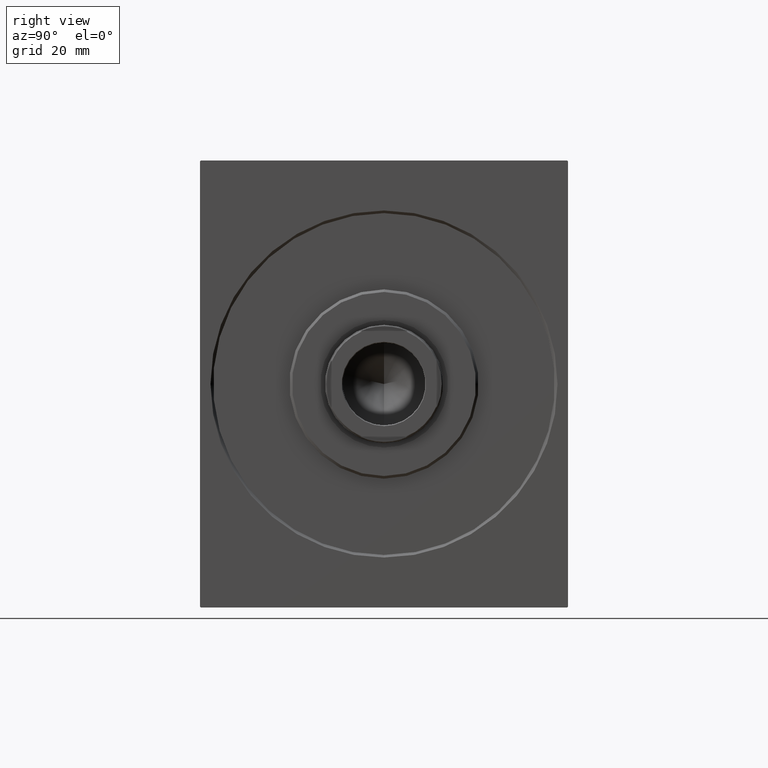
[diagram: clean part render]
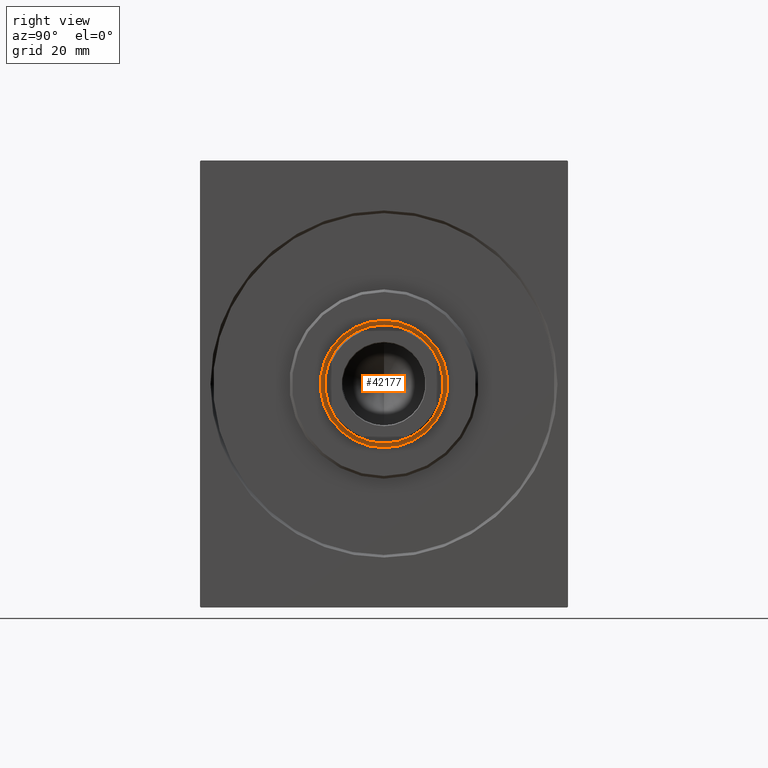
[diagram: same view with one face highlighted and labeled with its STEP entity id]
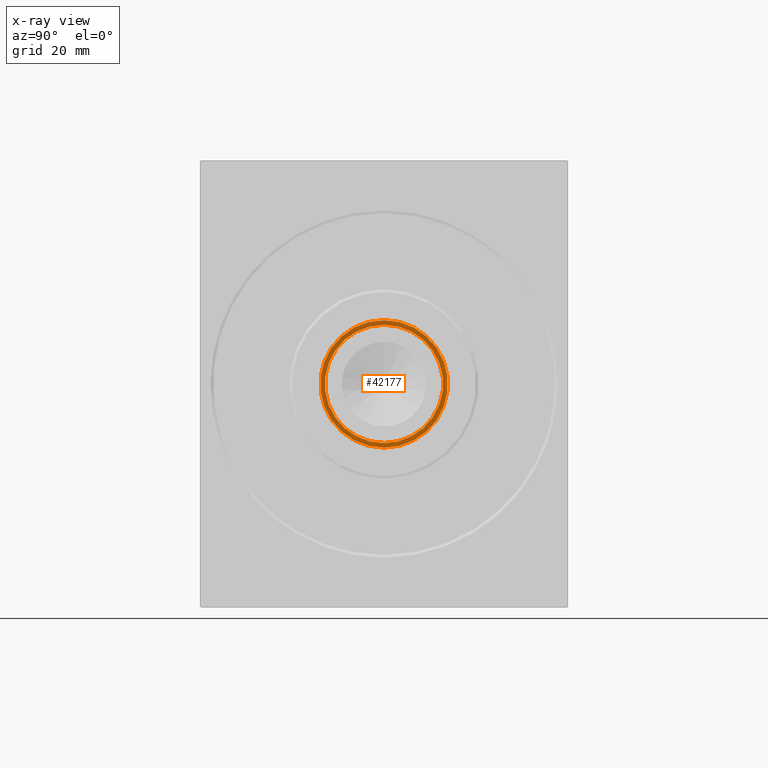
[diagram: x-ray of the same camera — body ghosted, the highlighted face saturated]
A machine part, right view. The second image highlights one B-rep face of the part: STEP entity #42177.
The next image is the same camera in x-ray: the body ghosted, the highlighted face saturated — about 0% of this face is hidden behind the body in this view.
In plain terms, the highlighted planar face has unit normal (1, 0, 0).
Its self-contained STEP definition (entity closure, byte-faithful):
#4529 = DIRECTION ( 'NONE',  ( 1.000000000000000000, 0.000000000000000000, 0.000000000000000000 ) ) ;
#5043 = AXIS2_PLACEMENT_3D ( 'NONE', #10374, #4529, #17714 ) ;
#5325 = EDGE_CURVE ( 'NONE', #9259, #36409, #6471, .T. ) ;
#5971 = DIRECTION ( 'NONE',  ( 0.000000000000000000, 0.000000000000000000, -1.000000000000000000 ) ) ;
#6471 = CIRCLE ( 'NONE', #30668, 22.50000000000000355 ) ;
#7305 = DIRECTION ( 'NONE',  ( 1.000000000000000000, 0.000000000000000000, 0.000000000000000000 ) ) ;
#9259 = VERTEX_POINT ( 'NONE', #23215 ) ;
#10374 = CARTESIAN_POINT ( 'NONE',  ( 1.500000000000000000, 0.000000000000000000, 0.000000000000000000 ) ) ;
#10733 = CARTESIAN_POINT ( 'NONE',  ( 1.500000000000000000, 0.000000000000000000, 0.000000000000000000 ) ) ;
#11348 = DIRECTION ( 'NONE',  ( 1.000000000000000000, 0.000000000000000000, 0.000000000000000000 ) ) ;
#12462 = DIRECTION ( 'NONE',  ( 1.000000000000000000, 0.000000000000000000, 0.000000000000000000 ) ) ;
#13959 = EDGE_CURVE ( 'NONE', #34735, #16793, #26860, .T. ) ;
#16471 = AXIS2_PLACEMENT_3D ( 'NONE', #10733, #30218, #30862 ) ;
#16793 = VERTEX_POINT ( 'NONE', #40892 ) ;
#17714 = DIRECTION ( 'NONE',  ( 0.000000000000000000, 0.000000000000000000, -1.000000000000000000 ) ) ;
#18032 = CIRCLE ( 'NONE', #34641, 24.25000000000000000 ) ;
#22131 = EDGE_CURVE ( 'NONE', #16793, #34735, #18032, .T. ) ;
#22222 = CIRCLE ( 'NONE', #42282, 22.50000000000000355 ) ;
#23215 = CARTESIAN_POINT ( 'NONE',  ( 1.500000000000001332, 2.755455298081544383E-15, 22.50000000000000355 ) ) ;
#26860 = CIRCLE ( 'NONE', #16471, 24.25000000000000000 ) ;
#26916 = EDGE_LOOP ( 'NONE', ( #31240, #33623 ) ) ;
#27371 = EDGE_CURVE ( 'NONE', #36409, #9259, #22222, .T. ) ;
#27692 = CARTESIAN_POINT ( 'NONE',  ( 1.500000000000000000, 0.000000000000000000, 24.25000000000000000 ) ) ;
#30218 = DIRECTION ( 'NONE',  ( 1.000000000000000000, 0.000000000000000000, 0.000000000000000000 ) ) ;
#30299 = FACE_BOUND ( 'NONE', #26916, .T. ) ;
#30668 = AXIS2_PLACEMENT_3D ( 'NONE', #33649, #11348, #41216 ) ;
#30862 = DIRECTION ( 'NONE',  ( 0.000000000000000000, 0.000000000000000000, -1.000000000000000000 ) ) ;
#31240 = ORIENTED_EDGE ( 'NONE', *, *, #27371, .F. ) ;
#33145 = EDGE_LOOP ( 'NONE', ( #42251, #33361 ) ) ;
#33361 = ORIENTED_EDGE ( 'NONE', *, *, #22131, .T. ) ;
#33623 = ORIENTED_EDGE ( 'NONE', *, *, #5325, .F. ) ;
#33649 = CARTESIAN_POINT ( 'NONE',  ( 1.500000000000001332, 0.000000000000000000, 0.000000000000000000 ) ) ;
#34185 = FACE_OUTER_BOUND ( 'NONE', #33145, .T. ) ;
#34354 = DIRECTION ( 'NONE',  ( 0.000000000000000000, 0.000000000000000000, -1.000000000000000000 ) ) ;
#34641 = AXIS2_PLACEMENT_3D ( 'NONE', #37182, #7305, #34354 ) ;
#34735 = VERTEX_POINT ( 'NONE', #27692 ) ;
#36409 = VERTEX_POINT ( 'NONE', #36877 ) ;
#36877 = CARTESIAN_POINT ( 'NONE',  ( 1.500000000000001332, 0.000000000000000000, -22.50000000000000355 ) ) ;
#37182 = CARTESIAN_POINT ( 'NONE',  ( 1.500000000000000000, 0.000000000000000000, 0.000000000000000000 ) ) ;
#40036 = PLANE ( 'NONE',  #5043 ) ;
#40892 = CARTESIAN_POINT ( 'NONE',  ( 1.500000000000000000, 2.969768487932331287E-15, -24.25000000000000000 ) ) ;
#41216 = DIRECTION ( 'NONE',  ( 0.000000000000000000, 0.000000000000000000, -1.000000000000000000 ) ) ;
#41695 = CARTESIAN_POINT ( 'NONE',  ( 1.500000000000001332, 0.000000000000000000, 0.000000000000000000 ) ) ;
#42177 = ADVANCED_FACE ( 'NONE', ( #30299, #34185 ), #40036, .T. ) ;
#42251 = ORIENTED_EDGE ( 'NONE', *, *, #13959, .T. ) ;
#42282 = AXIS2_PLACEMENT_3D ( 'NONE', #41695, #12462, #5971 ) ;